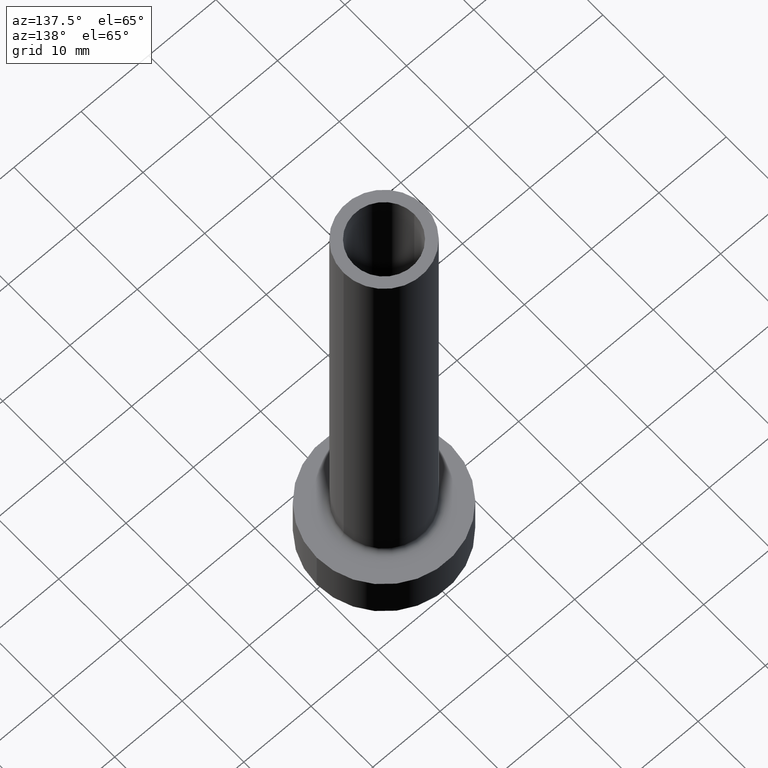
[diagram: clean part render]
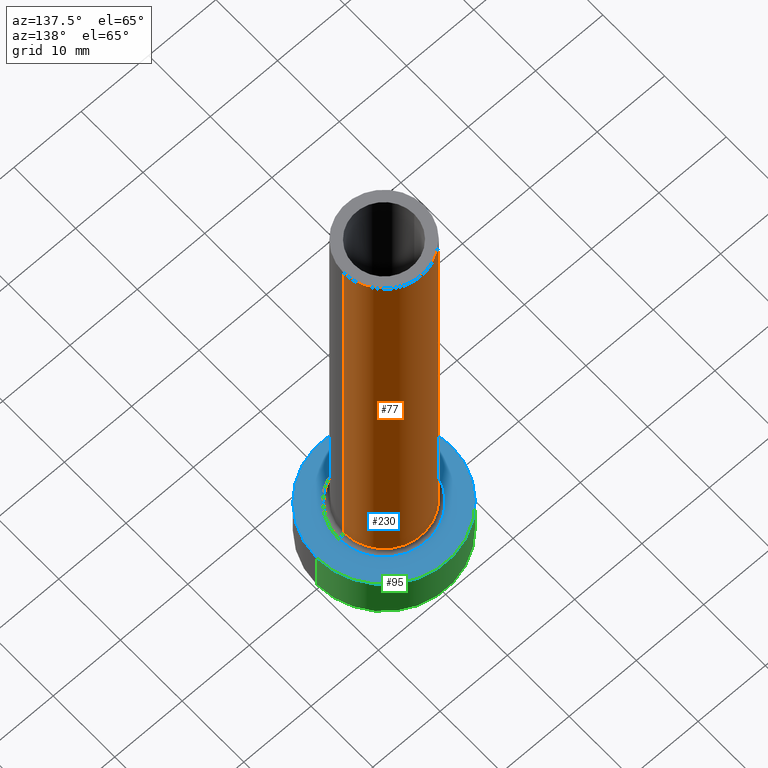
[diagram: same view with three faces highlighted in distinct colors, each labeled with its STEP entity id]
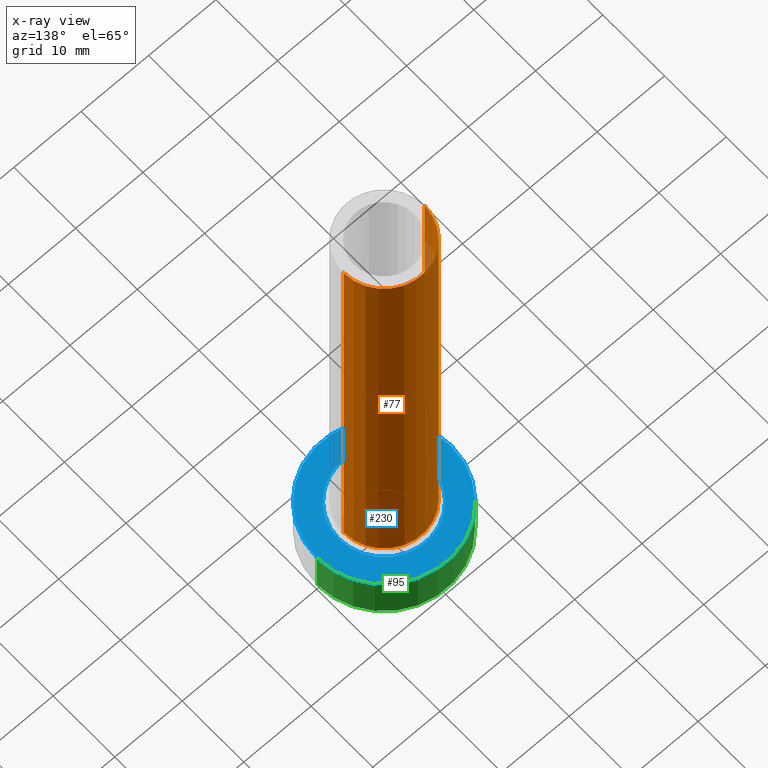
[diagram: x-ray of the same camera — body ghosted, the three highlighted faces saturated]
A machine part, auxiliary view with three faces highlighted in distinct colors.
The next image is the same camera in x-ray (body ghosted, the three faces saturated) — at least one of them is partly hidden behind the body in this view.
Their STEP definitions:

[orange] entity #77 — the highlighted cylindrical surface (partial cylindrical patch) has radius 6 mm, axis along (-0, -0, -1).
#3 = VERTEX_POINT ( 'NONE', #38 ) ;
#17 = DIRECTION ( 'NONE',  ( -0.000000000000000000, -0.000000000000000000, -1.000000000000000000 ) ) ;
#27 = FACE_OUTER_BOUND ( 'NONE', #346, .T. ) ;
#29 = ORIENTED_EDGE ( 'NONE', *, *, #141, .T. ) ;
#38 = CARTESIAN_POINT ( 'NONE',  ( -6.000000000000000888, 0.000000000000000000, 7.699999999999998401 ) ) ;
#39 = AXIS2_PLACEMENT_3D ( 'NONE', #208, #279, #345 ) ;
#63 = CIRCLE ( 'NONE', #39, 6.000000000000000888 ) ;
#77 = ADVANCED_FACE ( 'NONE', ( #27 ), #173, .T. ) ;
#87 = VECTOR ( 'NONE', #17, 1000.000000000000000 ) ;
#94 = VECTOR ( 'NONE', #98, 1000.000000000000000 ) ;
#98 = DIRECTION ( 'NONE',  ( -0.000000000000000000, -0.000000000000000000, -1.000000000000000000 ) ) ;
#103 = CARTESIAN_POINT ( 'NONE',  ( 0.000000000000000000, 0.000000000000000000, 7.699999999999998401 ) ) ;
#111 = EDGE_CURVE ( 'NONE', #430, #338, #63, .T. ) ;
#117 = EDGE_CURVE ( 'NONE', #338, #3, #139, .T. ) ;
#127 = CIRCLE ( 'NONE', #383, 6.000000000000000888 ) ;
#135 = CARTESIAN_POINT ( 'NONE',  ( 0.000000000000000000, 0.000000000000000000, 75.00000000000001421 ) ) ;
#139 = LINE ( 'NONE', #417, #94 ) ;
#141 = EDGE_CURVE ( 'NONE', #391, #3, #127, .T. ) ;
#146 = DIRECTION ( 'NONE',  ( -0.000000000000000000, -0.000000000000000000, -1.000000000000000000 ) ) ;
#160 = AXIS2_PLACEMENT_3D ( 'NONE', #135, #146, #311 ) ;
#162 = ORIENTED_EDGE ( 'NONE', *, *, #111, .F. ) ;
#173 = CYLINDRICAL_SURFACE ( 'NONE', #160, 6.000000000000000888 ) ;
#208 = CARTESIAN_POINT ( 'NONE',  ( 0.000000000000000000, 0.000000000000000000, 75.00000000000001421 ) ) ;
#228 = LINE ( 'NONE', #334, #87 ) ;
#233 = CARTESIAN_POINT ( 'NONE',  ( 6.000000000000000888, 7.347880794884120722E-16, 75.00000000000001421 ) ) ;
#238 = ORIENTED_EDGE ( 'NONE', *, *, #426, .T. ) ;
#247 = DIRECTION ( 'NONE',  ( 0.000000000000000000, 0.000000000000000000, 1.000000000000000000 ) ) ;
#269 = CARTESIAN_POINT ( 'NONE',  ( 6.000000000000000888, 7.347880794884120722E-16, 7.699999999999998401 ) ) ;
#279 = DIRECTION ( 'NONE',  ( 0.000000000000000000, 0.000000000000000000, 1.000000000000000000 ) ) ;
#311 = DIRECTION ( 'NONE',  ( -1.000000000000000000, 0.000000000000000000, 0.000000000000000000 ) ) ;
#334 = CARTESIAN_POINT ( 'NONE',  ( 6.000000000000000888, 7.347880794884120722E-16, 75.00000000000001421 ) ) ;
#338 = VERTEX_POINT ( 'NONE', #444 ) ;
#345 = DIRECTION ( 'NONE',  ( 1.000000000000000000, 0.000000000000000000, 0.000000000000000000 ) ) ;
#346 = EDGE_LOOP ( 'NONE', ( #162, #238, #29, #370 ) ) ;
#370 = ORIENTED_EDGE ( 'NONE', *, *, #117, .F. ) ;
#383 = AXIS2_PLACEMENT_3D ( 'NONE', #103, #247, #386 ) ;
#386 = DIRECTION ( 'NONE',  ( 1.000000000000000000, 0.000000000000000000, 0.000000000000000000 ) ) ;
#391 = VERTEX_POINT ( 'NONE', #269 ) ;
#417 = CARTESIAN_POINT ( 'NONE',  ( -6.000000000000000888, 0.000000000000000000, 75.00000000000001421 ) ) ;
#426 = EDGE_CURVE ( 'NONE', #430, #391, #228, .T. ) ;
#430 = VERTEX_POINT ( 'NONE', #233 ) ;
#444 = CARTESIAN_POINT ( 'NONE',  ( -6.000000000000000888, 0.000000000000000000, 75.00000000000001421 ) ) ;

[blue] entity #230 — the highlighted planar face has unit normal (0, 0, 1).
#13 = ORIENTED_EDGE ( 'NONE', *, *, #341, .T. ) ;
#16 = AXIS2_PLACEMENT_3D ( 'NONE', #168, #448, #234 ) ;
#30 = CARTESIAN_POINT ( 'NONE',  ( 0.000000000000000000, 0.000000000000000000, 7.000000000000000000 ) ) ;
#31 = ORIENTED_EDGE ( 'NONE', *, *, #323, .T. ) ;
#35 = EDGE_CURVE ( 'NONE', #330, #441, #316, .T. ) ;
#40 = ORIENTED_EDGE ( 'NONE', *, *, #35, .T. ) ;
#42 = VERTEX_POINT ( 'NONE', #179 ) ;
#61 = CARTESIAN_POINT ( 'NONE',  ( 6.700000000000001066, 0.000000000000000000, 6.999999999999999112 ) ) ;
#93 = DIRECTION ( 'NONE',  ( -0.000000000000000000, -0.000000000000000000, -1.000000000000000000 ) ) ;
#104 = VERTEX_POINT ( 'NONE', #61 ) ;
#118 = AXIS2_PLACEMENT_3D ( 'NONE', #30, #351, #377 ) ;
#154 = FACE_OUTER_BOUND ( 'NONE', #219, .T. ) ;
#158 = CARTESIAN_POINT ( 'NONE',  ( 0.000000000000000000, 0.000000000000000000, 7.000000000000000000 ) ) ;
#167 = CARTESIAN_POINT ( 'NONE',  ( 10.00000000000000000, 1.224646799147353256E-15, 7.000000000000000000 ) ) ;
#168 = CARTESIAN_POINT ( 'NONE',  ( 0.000000000000000000, 0.000000000000000000, 7.000000000000000000 ) ) ;
#179 = CARTESIAN_POINT ( 'NONE',  ( -6.700000000000001066, 8.205133554287267548E-16, 6.999999999999999112 ) ) ;
#195 = EDGE_LOOP ( 'NONE', ( #340, #31 ) ) ;
#212 = CIRCLE ( 'NONE', #16, 6.700000000000001066 ) ;
#218 = PLANE ( 'NONE',  #296 ) ;
#219 = EDGE_LOOP ( 'NONE', ( #13, #40 ) ) ;
#226 = DIRECTION ( 'NONE',  ( 0.000000000000000000, 0.000000000000000000, 1.000000000000000000 ) ) ;
#230 = ADVANCED_FACE ( 'NONE', ( #262, #154 ), #218, .T. ) ;
#234 = DIRECTION ( 'NONE',  ( 1.000000000000000000, 0.000000000000000000, 0.000000000000000000 ) ) ;
#236 = DIRECTION ( 'NONE',  ( 1.000000000000000000, 0.000000000000000000, 0.000000000000000000 ) ) ;
#262 = FACE_BOUND ( 'NONE', #195, .T. ) ;
#278 = AXIS2_PLACEMENT_3D ( 'NONE', #301, #410, #447 ) ;
#296 = AXIS2_PLACEMENT_3D ( 'NONE', #158, #226, #354 ) ;
#301 = CARTESIAN_POINT ( 'NONE',  ( 0.000000000000000000, 0.000000000000000000, 7.000000000000000000 ) ) ;
#316 = CIRCLE ( 'NONE', #118, 10.00000000000000000 ) ;
#323 = EDGE_CURVE ( 'NONE', #42, #104, #212, .T. ) ;
#330 = VERTEX_POINT ( 'NONE', #167 ) ;
#333 = CARTESIAN_POINT ( 'NONE',  ( 0.000000000000000000, 0.000000000000000000, 7.000000000000000000 ) ) ;
#340 = ORIENTED_EDGE ( 'NONE', *, *, #416, .T. ) ;
#341 = EDGE_CURVE ( 'NONE', #441, #330, #427, .T. ) ;
#351 = DIRECTION ( 'NONE',  ( 0.000000000000000000, 0.000000000000000000, 1.000000000000000000 ) ) ;
#354 = DIRECTION ( 'NONE',  ( 1.000000000000000000, 0.000000000000000000, -0.000000000000000000 ) ) ;
#369 = CARTESIAN_POINT ( 'NONE',  ( -10.00000000000000000, 0.000000000000000000, 7.000000000000000000 ) ) ;
#377 = DIRECTION ( 'NONE',  ( 1.000000000000000000, 0.000000000000000000, 0.000000000000000000 ) ) ;
#389 = CIRCLE ( 'NONE', #458, 6.700000000000001066 ) ;
#410 = DIRECTION ( 'NONE',  ( 0.000000000000000000, 0.000000000000000000, 1.000000000000000000 ) ) ;
#416 = EDGE_CURVE ( 'NONE', #104, #42, #389, .T. ) ;
#427 = CIRCLE ( 'NONE', #278, 10.00000000000000000 ) ;
#441 = VERTEX_POINT ( 'NONE', #369 ) ;
#447 = DIRECTION ( 'NONE',  ( 1.000000000000000000, 0.000000000000000000, 0.000000000000000000 ) ) ;
#448 = DIRECTION ( 'NONE',  ( -0.000000000000000000, -0.000000000000000000, -1.000000000000000000 ) ) ;
#458 = AXIS2_PLACEMENT_3D ( 'NONE', #333, #93, #236 ) ;

[green] entity #95 — the highlighted cylindrical surface (partial cylindrical patch) has radius 10 mm, axis along (-0, -0, -1).
#1 = EDGE_CURVE ( 'NONE', #113, #174, #399, .T. ) ;
#30 = CARTESIAN_POINT ( 'NONE',  ( 0.000000000000000000, 0.000000000000000000, 7.000000000000000000 ) ) ;
#35 = EDGE_CURVE ( 'NONE', #330, #441, #316, .T. ) ;
#46 = CARTESIAN_POINT ( 'NONE',  ( 10.00000000000000000, 1.224646799147353256E-15, 7.000000000000000000 ) ) ;
#90 = LINE ( 'NONE', #165, #270 ) ;
#95 = ADVANCED_FACE ( 'NONE', ( #460 ), #244, .T. ) ;
#113 = VERTEX_POINT ( 'NONE', #170 ) ;
#118 = AXIS2_PLACEMENT_3D ( 'NONE', #30, #351, #377 ) ;
#140 = ORIENTED_EDGE ( 'NONE', *, *, #406, .F. ) ;
#143 = DIRECTION ( 'NONE',  ( -1.000000000000000000, 0.000000000000000000, 0.000000000000000000 ) ) ;
#165 = CARTESIAN_POINT ( 'NONE',  ( -10.00000000000000000, 0.000000000000000000, 7.000000000000000000 ) ) ;
#167 = CARTESIAN_POINT ( 'NONE',  ( 10.00000000000000000, 1.224646799147353256E-15, 7.000000000000000000 ) ) ;
#170 = CARTESIAN_POINT ( 'NONE',  ( 10.00000000000000000, 1.224646799147353256E-15, 0.000000000000000000 ) ) ;
#174 = VERTEX_POINT ( 'NONE', #329 ) ;
#199 = EDGE_LOOP ( 'NONE', ( #232, #422, #312, #140 ) ) ;
#224 = LINE ( 'NONE', #46, #273 ) ;
#231 = DIRECTION ( 'NONE',  ( -0.000000000000000000, -0.000000000000000000, -1.000000000000000000 ) ) ;
#232 = ORIENTED_EDGE ( 'NONE', *, *, #35, .F. ) ;
#244 = CYLINDRICAL_SURFACE ( 'NONE', #299, 10.00000000000000000 ) ;
#256 = EDGE_CURVE ( 'NONE', #330, #113, #224, .T. ) ;
#270 = VECTOR ( 'NONE', #231, 1000.000000000000000 ) ;
#273 = VECTOR ( 'NONE', #396, 1000.000000000000000 ) ;
#284 = DIRECTION ( 'NONE',  ( 0.000000000000000000, 0.000000000000000000, 1.000000000000000000 ) ) ;
#299 = AXIS2_PLACEMENT_3D ( 'NONE', #414, #456, #143 ) ;
#309 = DIRECTION ( 'NONE',  ( 1.000000000000000000, 0.000000000000000000, 0.000000000000000000 ) ) ;
#312 = ORIENTED_EDGE ( 'NONE', *, *, #1, .T. ) ;
#316 = CIRCLE ( 'NONE', #118, 10.00000000000000000 ) ;
#329 = CARTESIAN_POINT ( 'NONE',  ( -10.00000000000000000, 0.000000000000000000, 0.000000000000000000 ) ) ;
#330 = VERTEX_POINT ( 'NONE', #167 ) ;
#348 = CARTESIAN_POINT ( 'NONE',  ( 0.000000000000000000, 0.000000000000000000, 0.000000000000000000 ) ) ;
#351 = DIRECTION ( 'NONE',  ( 0.000000000000000000, 0.000000000000000000, 1.000000000000000000 ) ) ;
#369 = CARTESIAN_POINT ( 'NONE',  ( -10.00000000000000000, 0.000000000000000000, 7.000000000000000000 ) ) ;
#377 = DIRECTION ( 'NONE',  ( 1.000000000000000000, 0.000000000000000000, 0.000000000000000000 ) ) ;
#396 = DIRECTION ( 'NONE',  ( -0.000000000000000000, -0.000000000000000000, -1.000000000000000000 ) ) ;
#399 = CIRCLE ( 'NONE', #431, 10.00000000000000000 ) ;
#406 = EDGE_CURVE ( 'NONE', #441, #174, #90, .T. ) ;
#414 = CARTESIAN_POINT ( 'NONE',  ( 0.000000000000000000, 0.000000000000000000, 7.000000000000000000 ) ) ;
#422 = ORIENTED_EDGE ( 'NONE', *, *, #256, .T. ) ;
#431 = AXIS2_PLACEMENT_3D ( 'NONE', #348, #284, #309 ) ;
#441 = VERTEX_POINT ( 'NONE', #369 ) ;
#456 = DIRECTION ( 'NONE',  ( -0.000000000000000000, -0.000000000000000000, -1.000000000000000000 ) ) ;
#460 = FACE_OUTER_BOUND ( 'NONE', #199, .T. ) ;